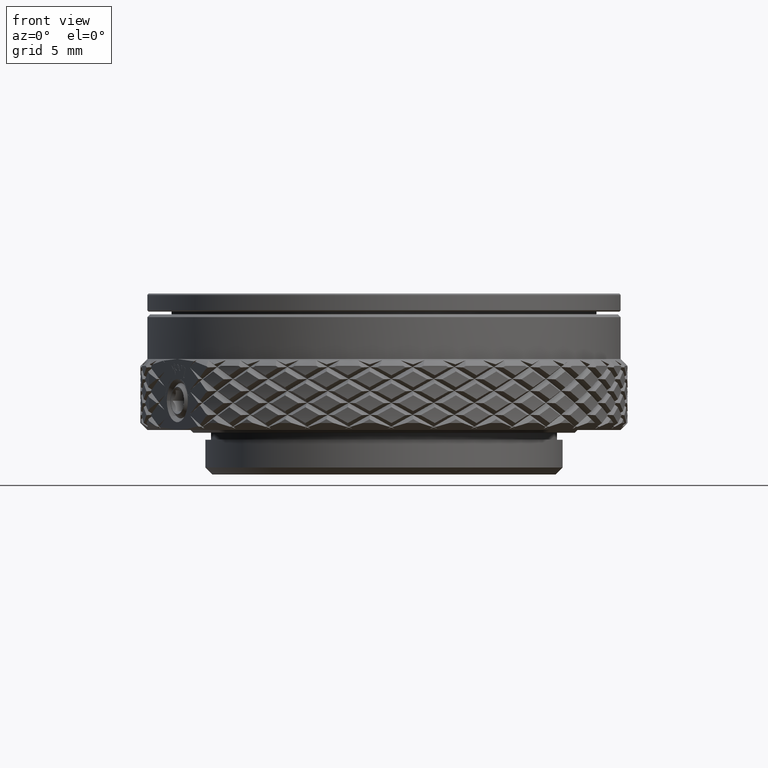
[diagram: clean part render]
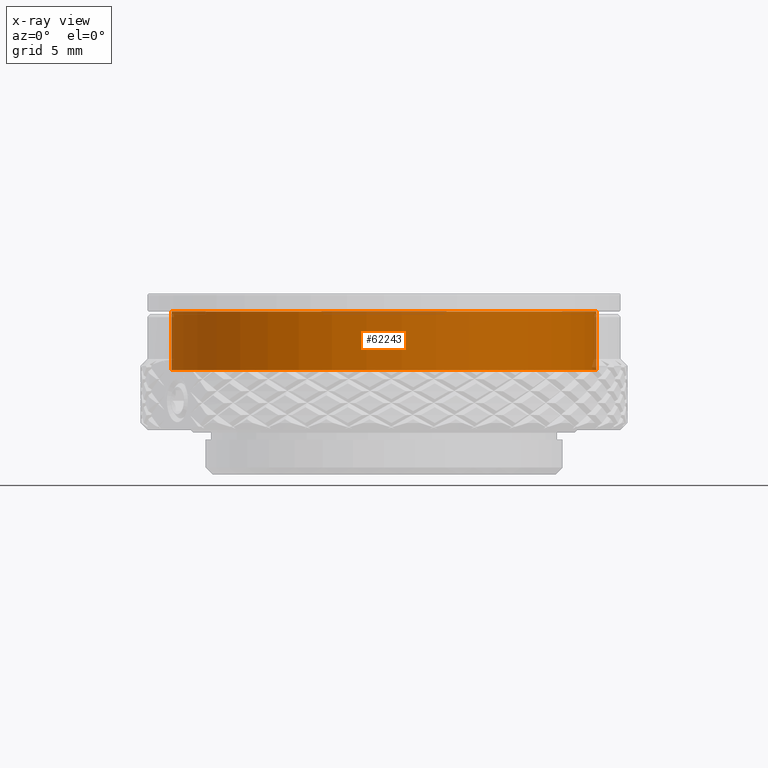
[diagram: x-ray — body ghosted, one internal face saturated and labeled with its STEP entity id]
A machine part, front view, then the same camera in x-ray: the body is ghosted and one INTERNAL B-rep face — a face not visible from any outside direction — is saturated and labeled: STEP entity #62243.
In plain terms, the highlighted cylindrical surface (partial cylindrical patch) has radius 15.25 mm, axis along (-0, -0, -1).
Its self-contained STEP definition (entity closure, byte-faithful):
#450 = ORIENTED_EDGE ( 'NONE', *, *, #16040, .T. ) ;
#914 = CIRCLE ( 'NONE', #82089, 15.25000000000000178 ) ;
#8743 = VERTEX_POINT ( 'NONE', #12583 ) ;
#9945 = CARTESIAN_POINT ( 'NONE',  ( 0.000000000000000000, 0.000000000000000000, 11.69999999999999929 ) ) ;
#12337 = DIRECTION ( 'NONE',  ( 0.000000000000000000, 0.000000000000000000, 1.000000000000000000 ) ) ;
#12583 = CARTESIAN_POINT ( 'NONE',  ( -15.25000000000000178, 0.000000000000000000, 11.69999999999999929 ) ) ;
#14783 = DIRECTION ( 'NONE',  ( -0.000000000000000000, -0.000000000000000000, -1.000000000000000000 ) ) ;
#16040 = EDGE_CURVE ( 'NONE', #8743, #53378, #35354, .T. ) ;
#16377 = DIRECTION ( 'NONE',  ( 0.000000000000000000, 0.000000000000000000, 1.000000000000000000 ) ) ;
#17945 = CARTESIAN_POINT ( 'NONE',  ( 0.000000000000000000, 0.000000000000000000, 7.500000000000002665 ) ) ;
#18377 = DIRECTION ( 'NONE',  ( 1.000000000000000000, 0.000000000000000000, 0.000000000000000000 ) ) ;
#21245 = FACE_OUTER_BOUND ( 'NONE', #24372, .T. ) ;
#23216 = LINE ( 'NONE', #28414, #49345 ) ;
#24372 = EDGE_LOOP ( 'NONE', ( #42002, #64008, #450, #52456 ) ) ;
#28414 = CARTESIAN_POINT ( 'NONE',  ( 15.25000000000000178, 1.867586368699713770E-15, 11.69999999999999929 ) ) ;
#28945 = EDGE_CURVE ( 'NONE', #38787, #52397, #23216, .T. ) ;
#35354 = LINE ( 'NONE', #61626, #78331 ) ;
#38787 = VERTEX_POINT ( 'NONE', #42252 ) ;
#41117 = CYLINDRICAL_SURFACE ( 'NONE', #64229, 15.25000000000000178 ) ;
#42002 = ORIENTED_EDGE ( 'NONE', *, *, #28945, .F. ) ;
#42168 = AXIS2_PLACEMENT_3D ( 'NONE', #17945, #12337, #64061 ) ;
#42252 = CARTESIAN_POINT ( 'NONE',  ( 15.25000000000000178, 1.867586368699713770E-15, 11.69999999999999929 ) ) ;
#42290 = DIRECTION ( 'NONE',  ( -0.000000000000000000, -0.000000000000000000, -1.000000000000000000 ) ) ;
#45469 = EDGE_CURVE ( 'NONE', #53378, #52397, #79239, .T. ) ;
#46495 = EDGE_CURVE ( 'NONE', #8743, #38787, #914, .T. ) ;
#47571 = CARTESIAN_POINT ( 'NONE',  ( 0.000000000000000000, 0.000000000000000000, 11.69999999999999929 ) ) ;
#49345 = VECTOR ( 'NONE', #74920, 1000.000000000000000 ) ;
#52397 = VERTEX_POINT ( 'NONE', #80167 ) ;
#52456 = ORIENTED_EDGE ( 'NONE', *, *, #45469, .T. ) ;
#53378 = VERTEX_POINT ( 'NONE', #80183 ) ;
#61626 = CARTESIAN_POINT ( 'NONE',  ( -15.25000000000000178, 0.000000000000000000, 11.69999999999999929 ) ) ;
#62243 = ADVANCED_FACE ( 'NONE', ( #21245 ), #41117, .T. ) ;
#64008 = ORIENTED_EDGE ( 'NONE', *, *, #46495, .F. ) ;
#64061 = DIRECTION ( 'NONE',  ( -1.000000000000000000, 0.000000000000000000, 0.000000000000000000 ) ) ;
#64229 = AXIS2_PLACEMENT_3D ( 'NONE', #47571, #14783, #67342 ) ;
#67342 = DIRECTION ( 'NONE',  ( -1.000000000000000000, 0.000000000000000000, 0.000000000000000000 ) ) ;
#74920 = DIRECTION ( 'NONE',  ( -0.000000000000000000, -0.000000000000000000, -1.000000000000000000 ) ) ;
#78331 = VECTOR ( 'NONE', #42290, 1000.000000000000000 ) ;
#79239 = CIRCLE ( 'NONE', #42168, 15.25000000000000178 ) ;
#80167 = CARTESIAN_POINT ( 'NONE',  ( 15.25000000000000178, 1.867586368699713770E-15, 7.500000000000002665 ) ) ;
#80183 = CARTESIAN_POINT ( 'NONE',  ( -15.25000000000000178, 0.000000000000000000, 7.500000000000002665 ) ) ;
#82089 = AXIS2_PLACEMENT_3D ( 'NONE', #9945, #16377, #18377 ) ;